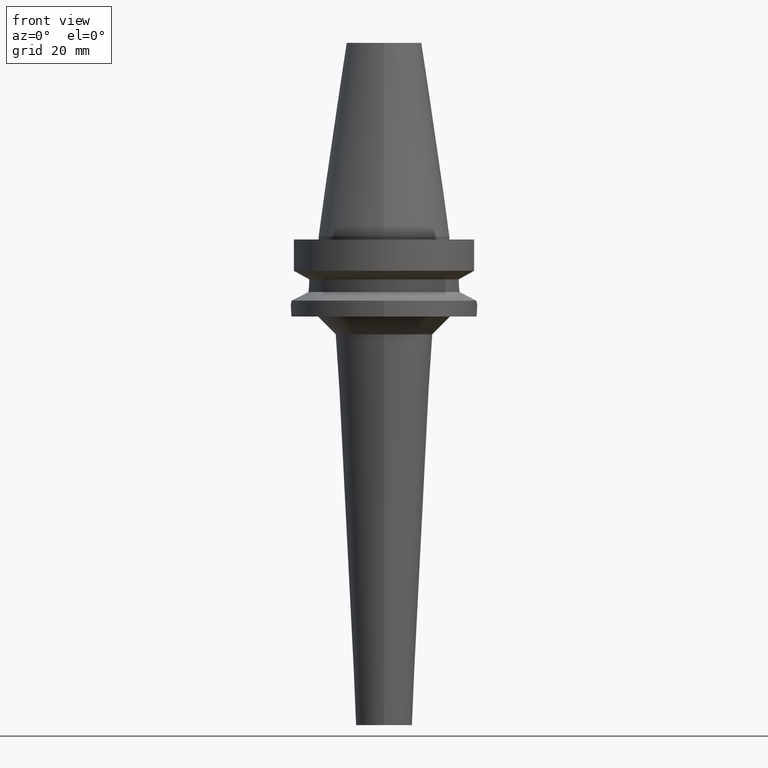
[diagram: clean part render]
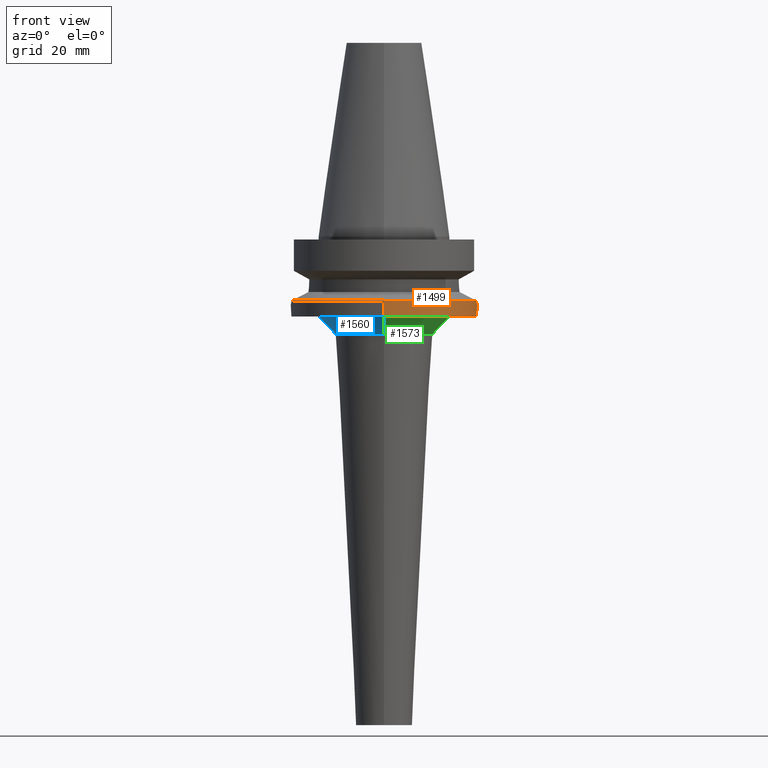
[diagram: same view with three faces highlighted in distinct colors, each labeled with its STEP entity id]
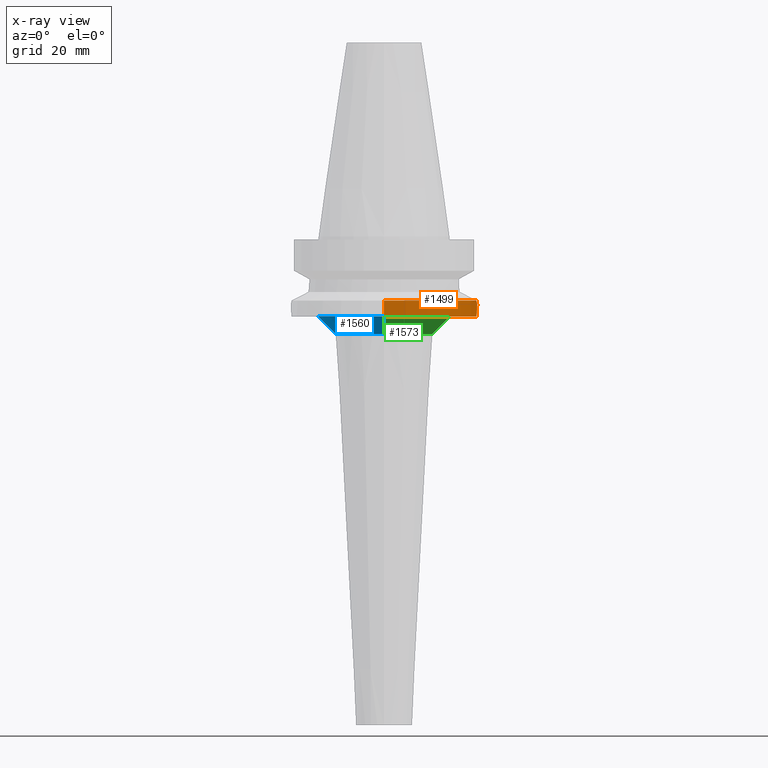
[diagram: x-ray of the same camera — body ghosted, the three highlighted faces saturated]
A machine part, front view with three faces highlighted in distinct colors.
The next image is the same camera in x-ray (body ghosted, the three faces saturated) — at least one of them is partly hidden behind the body in this view.
Their STEP definitions:

[orange] entity #1499 — the highlighted cylindrical surface (partial cylindrical patch) has radius 31.5 mm, axis along (0, 0, -1).
#494=CARTESIAN_POINT('',(0.E0,0.E0,-2.163449434733E1));
#495=DIRECTION('',(0.E0,0.E0,-1.E0));
#496=DIRECTION('',(9.898094849553E-1,-1.423979757319E-1,0.E0));
#497=AXIS2_PLACEMENT_3D('',#494,#495,#496);
#524=CARTESIAN_POINT('',(3.117899877609E1,-4.485536235554E0,-2.163449434733E1));
#525=CARTESIAN_POINT('',(3.124367220158E1,-4.035990730149E0,-2.193615555748E1));
#526=CARTESIAN_POINT('',(3.135871158456E1,-3.100629097606E0,-2.243541244984E1));
#527=CARTESIAN_POINT('',(3.147358573412E1,-1.571562217149E0,-2.289763062564E1));
#528=CARTESIAN_POINT('',(3.15E1,-5.304194873049E-1,-2.3E1));
#529=CARTESIAN_POINT('',(3.15E1,0.E0,-2.3E1));
#534=CARTESIAN_POINT('',(3.15E1,0.E0,-2.3E1));
#535=CARTESIAN_POINT('',(3.15E1,5.305046422132E-1,-2.3E1));
#536=CARTESIAN_POINT('',(3.147357697103E1,1.571759706119E0,-2.289759691925E1));
#537=CARTESIAN_POINT('',(3.135869289629E1,3.100801652069E0,-2.243533471996E1));
#538=CARTESIAN_POINT('',(3.124366261696E1,4.036057352875E0,-2.193611085123E1));
#539=CARTESIAN_POINT('',(3.117899877609E1,4.485536235554E0,-2.163449434733E1));
#544=DIRECTION('',(0.E0,1.099151708819E-13,-1.E0));
#545=VECTOR('',#544,5.365505652669E0);
#546=CARTESIAN_POINT('',(0.E0,3.15E1,-2.163449434733E1));
#547=LINE('',#546,#545);
#569=CARTESIAN_POINT('',(0.E0,0.E0,-2.163449434733E1));
#570=DIRECTION('',(0.E0,0.E0,-1.E0));
#571=DIRECTION('',(0.E0,1.E0,0.E0));
#572=AXIS2_PLACEMENT_3D('',#569,#570,#571);
#615=DIRECTION('',(0.E0,-1.105773104655E-13,-1.E0));
#616=VECTOR('',#615,5.365505652669E0);
#617=CARTESIAN_POINT('',(0.E0,-3.15E1,-2.163449434733E1));
#618=LINE('',#617,#616);
#622=CARTESIAN_POINT('',(0.E0,2.166645117051E-14,-2.7E1));
#623=DIRECTION('',(0.E0,0.E0,1.E0));
#624=DIRECTION('',(0.E0,-1.E0,0.E0));
#625=AXIS2_PLACEMENT_3D('',#622,#623,#624);
#1018=CARTESIAN_POINT('',(0.E0,-3.15E1,-2.7E1));
#1019=CARTESIAN_POINT('',(0.E0,3.15E1,-2.7E1));
#1020=VERTEX_POINT('',#1018);
#1021=VERTEX_POINT('',#1019);
#1022=VERTEX_POINT('',#534);
#1023=VERTEX_POINT('',#539);
#1024=VERTEX_POINT('',#524);
#1025=CARTESIAN_POINT('',(0.E0,3.15E1,-2.163449434733E1));
#1026=VERTEX_POINT('',#1025);
#1027=CARTESIAN_POINT('',(0.E0,-3.15E1,-2.163449434733E1));
#1028=VERTEX_POINT('',#1027);
#1481=CARTESIAN_POINT('',(0.E0,2.166645117051E-14,7.692E1));
#1482=DIRECTION('',(0.E0,0.E0,-1.E0));
#1483=DIRECTION('',(0.E0,-1.E0,0.E0));
#1484=AXIS2_PLACEMENT_3D('',#1481,#1482,#1483);
#1485=CYLINDRICAL_SURFACE('',#1484,3.15E1);
#1486=ORIENTED_EDGE('',*,*,#1467,.T.);
#1487=ORIENTED_EDGE('',*,*,#1465,.T.);
#1489=ORIENTED_EDGE('',*,*,#1488,.F.);
#1491=ORIENTED_EDGE('',*,*,#1490,.T.);
#1493=ORIENTED_EDGE('',*,*,#1492,.F.);
#1495=ORIENTED_EDGE('',*,*,#1494,.F.);
#1496=ORIENTED_EDGE('',*,*,#1453,.F.);
#1497=EDGE_LOOP('',(#1486,#1487,#1489,#1491,#1493,#1495,#1496));
#1498=FACE_OUTER_BOUND('',#1497,.F.);
#498=CIRCLE('',#497,3.15E1);
#530=B_SPLINE_CURVE_WITH_KNOTS('',3,(#524,#525,#526,#527,#528,#529),
.UNSPECIFIED.,.F.,.F.,(4,1,1,4),(0.E0,3.333333333333E-1,6.666666666667E-1,1.E0),
.UNSPECIFIED.);
#540=B_SPLINE_CURVE_WITH_KNOTS('',3,(#534,#535,#536,#537,#538,#539),
.UNSPECIFIED.,.F.,.F.,(4,1,1,4),(0.E0,3.333333333333E-1,6.666666666667E-1,1.E0),
.UNSPECIFIED.);
#573=CIRCLE('',#572,3.15E1);
#626=CIRCLE('',#625,3.15E1);
#1453=EDGE_CURVE('',#1024,#1028,#498,.T.);
#1465=EDGE_CURVE('',#1022,#1023,#540,.T.);
#1467=EDGE_CURVE('',#1024,#1022,#530,.T.);
#1488=EDGE_CURVE('',#1026,#1023,#573,.T.);
#1490=EDGE_CURVE('',#1026,#1021,#547,.T.);
#1492=EDGE_CURVE('',#1020,#1021,#626,.T.);
#1494=EDGE_CURVE('',#1028,#1020,#618,.T.);
#1499=ADVANCED_FACE('',(#1498),#1485,.T.);

[blue] entity #1560 — the highlighted conical surface has half-angle 45 deg.
#638=CARTESIAN_POINT('',(0.E0,0.E0,-2.7E1));
#639=DIRECTION('',(0.E0,0.E0,-1.E0));
#640=DIRECTION('',(0.E0,-1.E0,0.E0));
#641=AXIS2_PLACEMENT_3D('',#638,#639,#640);
#654=DIRECTION('',(0.E0,7.071067811865E-1,-7.071067811866E-1));
#655=VECTOR('',#654,8.485281374238E0);
#656=CARTESIAN_POINT('',(0.E0,-2.241782686536E1,-2.7E1));
#657=LINE('',#656,#655);
#661=CARTESIAN_POINT('',(0.E0,0.E0,-3.3E1));
#662=DIRECTION('',(0.E0,0.E0,-1.E0));
#663=DIRECTION('',(0.E0,-1.E0,0.E0));
#664=AXIS2_PLACEMENT_3D('',#661,#662,#663);
#669=DIRECTION('',(0.E0,-7.071067811865E-1,-7.071067811866E-1));
#670=VECTOR('',#669,8.485281374238E0);
#671=CARTESIAN_POINT('',(0.E0,2.241782686536E1,-2.7E1));
#672=LINE('',#671,#670);
#1010=CARTESIAN_POINT('',(0.E0,1.641782686536E1,-3.3E1));
#1011=VERTEX_POINT('',#1010);
#1012=CARTESIAN_POINT('',(0.E0,-1.641782686536E1,-3.3E1));
#1013=VERTEX_POINT('',#1012);
#1014=CARTESIAN_POINT('',(0.E0,2.241782686536E1,-2.7E1));
#1015=VERTEX_POINT('',#1014);
#1016=CARTESIAN_POINT('',(0.E0,-2.241782686536E1,-2.7E1));
#1017=VERTEX_POINT('',#1016);
#1546=CARTESIAN_POINT('',(0.E0,0.E0,-3.E1));
#1547=DIRECTION('',(0.E0,0.E0,1.E0));
#1548=DIRECTION('',(0.E0,1.E0,0.E0));
#1549=AXIS2_PLACEMENT_3D('',#1546,#1547,#1548);
#1550=CONICAL_SURFACE('',#1549,1.941782686536E1,4.5E1);
#1552=ORIENTED_EDGE('',*,*,#1551,.F.);
#1553=ORIENTED_EDGE('',*,*,#1539,.F.);
#1555=ORIENTED_EDGE('',*,*,#1554,.T.);
#1557=ORIENTED_EDGE('',*,*,#1556,.T.);
#1558=EDGE_LOOP('',(#1552,#1553,#1555,#1557));
#1559=FACE_OUTER_BOUND('',#1558,.F.);
#642=CIRCLE('',#641,2.241782686536E1);
#665=CIRCLE('',#664,1.641782686536E1);
#1539=EDGE_CURVE('',#1017,#1015,#642,.T.);
#1551=EDGE_CURVE('',#1015,#1011,#672,.T.);
#1554=EDGE_CURVE('',#1017,#1013,#657,.T.);
#1556=EDGE_CURVE('',#1013,#1011,#665,.T.);
#1560=ADVANCED_FACE('',(#1559),#1550,.T.);

[green] entity #1573 — the highlighted conical surface has half-angle 45 deg.
#646=CARTESIAN_POINT('',(0.E0,0.E0,-2.7E1));
#647=DIRECTION('',(0.E0,0.E0,-1.E0));
#648=DIRECTION('',(0.E0,1.E0,0.E0));
#649=AXIS2_PLACEMENT_3D('',#646,#647,#648);
#654=DIRECTION('',(0.E0,7.071067811865E-1,-7.071067811866E-1));
#655=VECTOR('',#654,8.485281374238E0);
#656=CARTESIAN_POINT('',(0.E0,-2.241782686536E1,-2.7E1));
#657=LINE('',#656,#655);
#669=DIRECTION('',(0.E0,-7.071067811865E-1,-7.071067811866E-1));
#670=VECTOR('',#669,8.485281374238E0);
#671=CARTESIAN_POINT('',(0.E0,2.241782686536E1,-2.7E1));
#672=LINE('',#671,#670);
#683=CARTESIAN_POINT('',(0.E0,0.E0,-3.3E1));
#684=DIRECTION('',(0.E0,0.E0,1.E0));
#685=DIRECTION('',(0.E0,-1.E0,0.E0));
#686=AXIS2_PLACEMENT_3D('',#683,#684,#685);
#1010=CARTESIAN_POINT('',(0.E0,1.641782686536E1,-3.3E1));
#1011=VERTEX_POINT('',#1010);
#1012=CARTESIAN_POINT('',(0.E0,-1.641782686536E1,-3.3E1));
#1013=VERTEX_POINT('',#1012);
#1014=CARTESIAN_POINT('',(0.E0,2.241782686536E1,-2.7E1));
#1015=VERTEX_POINT('',#1014);
#1016=CARTESIAN_POINT('',(0.E0,-2.241782686536E1,-2.7E1));
#1017=VERTEX_POINT('',#1016);
#1561=CARTESIAN_POINT('',(0.E0,0.E0,-3.E1));
#1562=DIRECTION('',(0.E0,0.E0,1.E0));
#1563=DIRECTION('',(0.E0,1.E0,0.E0));
#1564=AXIS2_PLACEMENT_3D('',#1561,#1562,#1563);
#1565=CONICAL_SURFACE('',#1564,1.941782686536E1,4.5E1);
#1566=ORIENTED_EDGE('',*,*,#1551,.T.);
#1568=ORIENTED_EDGE('',*,*,#1567,.F.);
#1569=ORIENTED_EDGE('',*,*,#1554,.F.);
#1570=ORIENTED_EDGE('',*,*,#1541,.F.);
#1571=EDGE_LOOP('',(#1566,#1568,#1569,#1570));
#1572=FACE_OUTER_BOUND('',#1571,.F.);
#650=CIRCLE('',#649,2.241782686536E1);
#687=CIRCLE('',#686,1.641782686536E1);
#1541=EDGE_CURVE('',#1015,#1017,#650,.T.);
#1551=EDGE_CURVE('',#1015,#1011,#672,.T.);
#1554=EDGE_CURVE('',#1017,#1013,#657,.T.);
#1567=EDGE_CURVE('',#1013,#1011,#687,.T.);
#1573=ADVANCED_FACE('',(#1572),#1565,.T.);